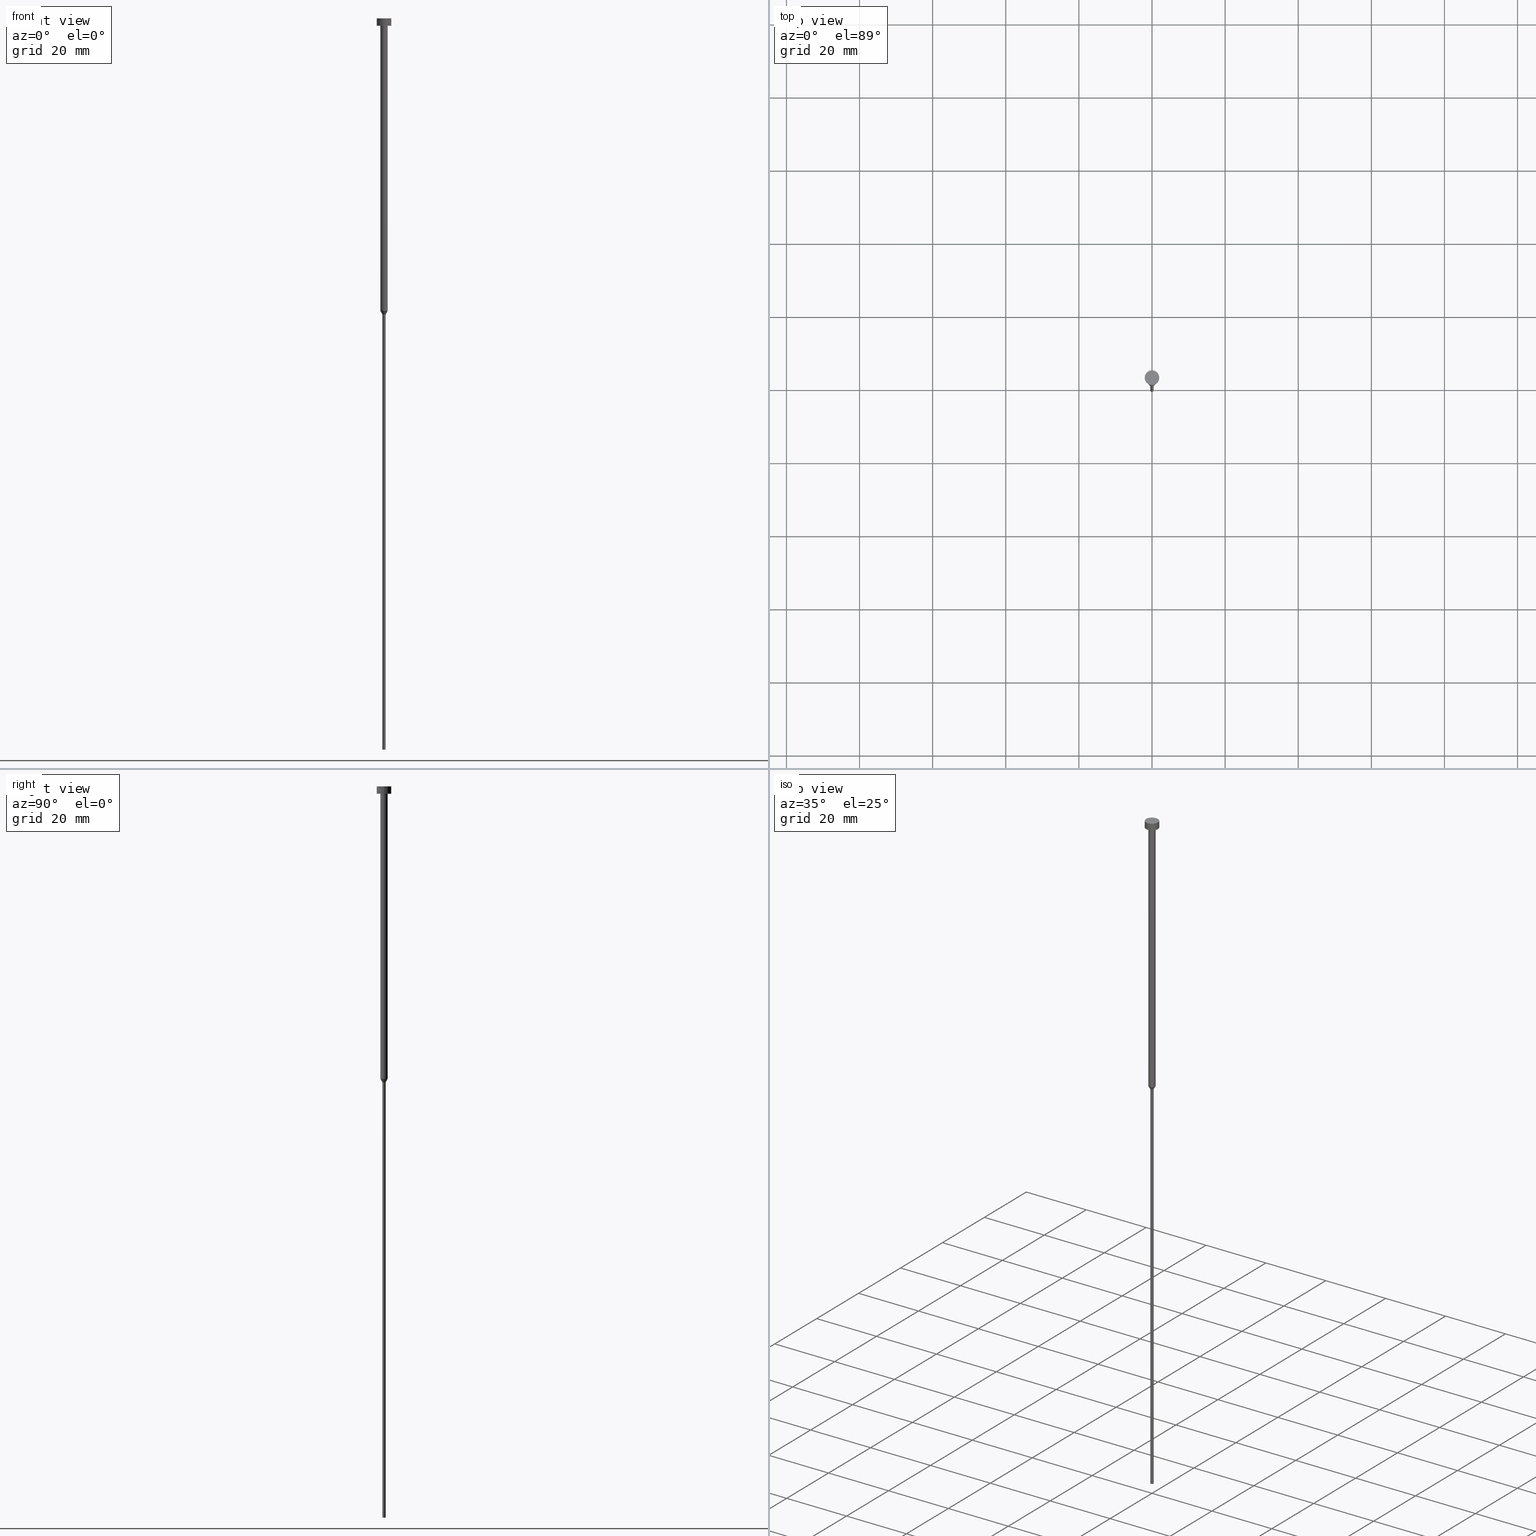
[diagram: canonical four-view strip — front | top / right | iso, engineering-drawing reading convention]
A machine part, canonical four-view strip (front | top / right | iso — engineering-drawing reading convention). The complete STEP part file that produces these views, byte-faithful:
ISO-10303-21;
HEADER;
FILE_DESCRIPTION (( 'STEP AP203' ),
    '1' );
FILE_NAME ('232b.STEP',
    '2023-02-13T11:50:11',
    ( '' ),
    ( '' ),
    'SwSTEP 2.0',
    'SolidWorks 2019',
    '' );
FILE_SCHEMA (( 'CONFIG_CONTROL_DESIGN' ));
ENDSEC;

DATA;
#1 = CIRCLE ( 'NONE', #137, 0.4500000000000000111 ) ;
#2 = DIRECTION ( 'NONE',  ( -0.000000000000000000, -0.000000000000000000, 1.000000000000000000 ) ) ;
#3 = EDGE_LOOP ( 'NONE', ( #285, #65, #34, #59 ) ) ;
#4 = CARTESIAN_POINT ( 'NONE',  ( 0.000000000000000000, 0.000000000000000000, 0.000000000000000000 ) ) ;
#5 = CARTESIAN_POINT ( 'NONE',  ( 2.000000000000000000, 0.000000000000000000, -2.449293598294705921E-16 ) ) ;
#6 = APPLICATION_CONTEXT ( 'configuration controlled 3d designs of mechanical parts and assemblies' ) ;
#7 = CARTESIAN_POINT ( 'NONE',  ( 0.000000000000000000, 0.000000000000000000, -80.95262794416288443 ) ) ;
#8 = FACE_OUTER_BOUND ( 'NONE', #238, .T. ) ;
#9 = AXIS2_PLACEMENT_3D ( 'NONE', #60, #187, #146 ) ;
#10 = CARTESIAN_POINT ( 'NONE',  ( -2.000000000000000000, 2.449293598294706414E-16, 0.000000000000000000 ) ) ;
#11 = EDGE_CURVE ( 'NONE', #88, #261, #38, .T. ) ;
#12 = CARTESIAN_POINT ( 'NONE',  ( 0.000000000000000000, 0.000000000000000000, -2.000000000000000444 ) ) ;
#13 = ORIENTED_EDGE ( 'NONE', *, *, #195, .T. ) ;
#14 = CIRCLE ( 'NONE', #188, 2.000000000000000000 ) ;
#15 = DIRECTION ( 'NONE',  ( -0.000000000000000000, -0.000000000000000000, 1.000000000000000000 ) ) ;
#16 = DIRECTION ( 'NONE',  ( 1.000000000000000000, 0.000000000000000000, 0.000000000000000000 ) ) ;
#17 =( NAMED_UNIT ( * ) PLANE_ANGLE_UNIT ( ) SI_UNIT ( $, .RADIAN. ) );
#18 = EDGE_CURVE ( 'NONE', #297, #194, #217, .T. ) ;
#19 = AXIS2_PLACEMENT_3D ( 'NONE', #167, #42, #145 ) ;
#20 = SECURITY_CLASSIFICATION_LEVEL ( 'unclassified' ) ;
#21 = VERTEX_POINT ( 'NONE', #276 ) ;
#22 = APPROVAL_STATUS ( 'not_yet_approved' ) ;
#23 = ORIENTED_EDGE ( 'NONE', *, *, #154, .F. ) ;
#24 = CARTESIAN_POINT ( 'NONE',  ( 0.000000000000000000, 0.000000000000000000, 0.000000000000000000 ) ) ;
#25 = DIRECTION ( 'NONE',  ( -1.000000000000000000, 0.000000000000000000, -0.000000000000000000 ) ) ;
#26 = APPLICATION_CONTEXT ( 'configuration controlled 3d designs of mechanical parts and assemblies' ) ;
#27 = EDGE_CURVE ( 'NONE', #194, #268, #35, .T. ) ;
#28 = ORIENTED_EDGE ( 'NONE', *, *, #280, .T. ) ;
#29 = CIRCLE ( 'NONE', #45, 0.4500000000000000111 ) ;
#30 = ORIENTED_EDGE ( 'NONE', *, *, #309, .F. ) ;
#31 = ORIENTED_EDGE ( 'NONE', *, *, #68, .T. ) ;
#32 = ORIENTED_EDGE ( 'NONE', *, *, #117, .F. ) ;
#33 = DESIGN_CONTEXT ( 'detailed design', #26, 'design' ) ;
#34 = ORIENTED_EDGE ( 'NONE', *, *, #280, .F. ) ;
#35 = CIRCLE ( 'NONE', #269, 2.000000000000000000 ) ;
#36 = DIRECTION ( 'NONE',  ( 1.000000000000000000, 0.000000000000000000, 0.000000000000000000 ) ) ;
#37 = DIRECTION ( 'NONE',  ( -0.000000000000000000, -0.000000000000000000, 1.000000000000000000 ) ) ;
#38 = LINE ( 'NONE', #115, #67 ) ;
#39 = CC_DESIGN_PERSON_AND_ORGANIZATION_ASSIGNMENT ( #47, #153, ( #50 ) ) ;
#40 = VECTOR ( 'NONE', #304, 1000.000000000000000 ) ;
#41 = CARTESIAN_POINT ( 'NONE',  ( 0.000000000000000000, -2.000000000000000000, -2.000000000000000444 ) ) ;
#42 = DIRECTION ( 'NONE',  ( -0.000000000000000000, -0.000000000000000000, 1.000000000000000000 ) ) ;
#43 = CARTESIAN_POINT ( 'NONE',  ( 0.000000000000000000, 0.000000000000000000, -2.000000000000000444 ) ) ;
#44 = EDGE_CURVE ( 'NONE', #61, #209, #252, .T. ) ;
#45 = AXIS2_PLACEMENT_3D ( 'NONE', #72, #200, #228 ) ;
#46 = DIRECTION ( 'NONE',  ( -0.000000000000000000, -0.000000000000000000, 1.000000000000000000 ) ) ;
#47 = PERSON_AND_ORGANIZATION ( #262, #109 ) ;
#48 = EDGE_LOOP ( 'NONE', ( #274, #13, #86, #307 ) ) ;
#49 = CARTESIAN_POINT ( 'NONE',  ( 1.000000000000003109, 0.000000000000000000, -80.00000000000000000 ) ) ;
#50 = SECURITY_CLASSIFICATION ( '', '', #20 ) ;
#51 = DIRECTION ( 'NONE',  ( 0.000000000000000000, 0.000000000000000000, -1.000000000000000000 ) ) ;
#52 = DATE_AND_TIME ( #279, #76 ) ;
#53 = EDGE_CURVE ( 'NONE', #268, #194, #322, .T. ) ;
#54 = VECTOR ( 'NONE', #78, 999.9999999999998863 ) ;
#55 = ORIENTED_EDGE ( 'NONE', *, *, #107, .F. ) ;
#56 = CIRCLE ( 'NONE', #251, 0.4500000000000000111 ) ;
#57 = EDGE_CURVE ( 'NONE', #131, #21, #29, .T. ) ;
#58 = CIRCLE ( 'NONE', #182, 1.000000000000003553 ) ;
#59 = ORIENTED_EDGE ( 'NONE', *, *, #11, .F. ) ;
#60 = CARTESIAN_POINT ( 'NONE',  ( 0.000000000000000000, 0.000000000000000000, 0.000000000000000000 ) ) ;
#61 = VERTEX_POINT ( 'NONE', #230 ) ;
#62 = FACE_OUTER_BOUND ( 'NONE', #140, .T. ) ;
#63 = APPROVAL ( #98, 'NEUR�EN�' ) ;
#64 = ORIENTED_EDGE ( 'NONE', *, *, #91, .F. ) ;
#65 = ORIENTED_EDGE ( 'NONE', *, *, #44, .T. ) ;
#66 = CARTESIAN_POINT ( 'NONE',  ( -0.4500000000000000111, 5.510910596163088939E-17, -200.0000000000000000 ) ) ;
#67 = VECTOR ( 'NONE', #2, 1000.000000000000000 ) ;
#68 = EDGE_CURVE ( 'NONE', #61, #88, #310, .T. ) ;
#69 = DIRECTION ( 'NONE',  ( 1.000000000000000000, 0.000000000000000000, 0.000000000000000000 ) ) ;
#70 = CARTESIAN_POINT ( 'NONE',  ( 0.000000000000000000, 0.000000000000000000, -2.449293598294705921E-16 ) ) ;
#71 = LINE ( 'NONE', #272, #214 ) ;
#72 = CARTESIAN_POINT ( 'NONE',  ( 0.000000000000000000, 0.000000000000000000, -200.0000000000000000 ) ) ;
#73 = CARTESIAN_POINT ( 'NONE',  ( 0.000000000000000000, 0.000000000000000000, 0.000000000000000000 ) ) ;
#74 = CARTESIAN_POINT ( 'NONE',  ( 0.000000000000000000, 0.000000000000000000, -80.00000000000000000 ) ) ;
#75 = CALENDAR_DATE ( 2023, 13, 2 ) ;
#76 = LOCAL_TIME ( 12, 50, 11.00000000000000000, #255 ) ;
#77 = DATE_AND_TIME ( #177, #267 ) ;
#78 = DIRECTION ( 'NONE',  ( 0.5000000000000014433, 0.000000000000000000, 0.8660254037844379305 ) ) ;
#79 = LINE ( 'NONE', #123, #342 ) ;
#80 =( NAMED_UNIT ( * ) SI_UNIT ( $, .STERADIAN. ) SOLID_ANGLE_UNIT ( ) );
#81 = APPROVAL_PERSON_ORGANIZATION ( #346, #63, #317 ) ;
#82 = VERTEX_POINT ( 'NONE', #316 ) ;
#83 = ORIENTED_EDGE ( 'NONE', *, *, #195, .F. ) ;
#84 = VECTOR ( 'NONE', #116, 1000.000000000000000 ) ;
#85 = EDGE_CURVE ( 'NONE', #287, #88, #290, .T. ) ;
#86 = ORIENTED_EDGE ( 'NONE', *, *, #27, .F. ) ;
#87 = CIRCLE ( 'NONE', #281, 1.000000000000003553 ) ;
#88 = VERTEX_POINT ( 'NONE', #49 ) ;
#89 = DIRECTION ( 'NONE',  ( 0.000000000000000000, -0.000000000000000000, 1.000000000000000000 ) ) ;
#90 = ORIENTED_EDGE ( 'NONE', *, *, #57, .T. ) ;
#91 = EDGE_CURVE ( 'NONE', #88, #61, #258, .T. ) ;
#92 = EDGE_LOOP ( 'NONE', ( #83, #216, #157, #332 ) ) ;
#93 = ORIENTED_EDGE ( 'NONE', *, *, #337, .F. ) ;
#94 = CARTESIAN_POINT ( 'NONE',  ( 0.000000000000000000, 0.000000000000000000, -80.00000000000000000 ) ) ;
#95 = FACE_OUTER_BOUND ( 'NONE', #92, .T. ) ;
#96 = CARTESIAN_POINT ( 'NONE',  ( 0.000000000000000000, 0.000000000000000000, 0.000000000000000000 ) ) ;
#97 = ADVANCED_FACE ( 'NONE', ( #176 ), #347, .T. ) ;
#98 = APPROVAL_STATUS ( 'not_yet_approved' ) ;
#99 = PERSON_AND_ORGANIZATION ( #262, #109 ) ;
#100 = ADVANCED_FACE ( 'NONE', ( #8 ), #246, .T. ) ;
#101 = PERSON_AND_ORGANIZATION_ROLE ( 'creator' ) ;
#102 = AXIS2_PLACEMENT_3D ( 'NONE', #311, #147, #295 ) ;
#103 = LOCAL_TIME ( 12, 50, 11.00000000000000000, #152 ) ;
#104 = ORIENTED_EDGE ( 'NONE', *, *, #68, .F. ) ;
#105 = APPROVAL_DATE_TIME ( #208, #254 ) ;
#106 = FACE_OUTER_BOUND ( 'NONE', #331, .T. ) ;
#107 = EDGE_CURVE ( 'NONE', #131, #112, #71, .T. ) ;
#108 = AXIS2_PLACEMENT_3D ( 'NONE', #94, #37, #193 ) ;
#109 = ORGANIZATION ( 'NEUR�EN�', 'NEUR�EN�', '' ) ;
#110 = APPROVAL_ROLE ( '' ) ;
#111 = EDGE_CURVE ( 'NONE', #21, #131, #213, .T. ) ;
#112 = VERTEX_POINT ( 'NONE', #308 ) ;
#113 = DIRECTION ( 'NONE',  ( 1.000000000000000000, 0.000000000000000000, 0.000000000000000000 ) ) ;
#114 = APPROVAL_PERSON_ORGANIZATION ( #155, #254, #110 ) ;
#115 = CARTESIAN_POINT ( 'NONE',  ( 1.000000000000003331, 0.000000000000000000, 0.000000000000000000 ) ) ;
#116 = DIRECTION ( 'NONE',  ( -0.000000000000000000, -0.000000000000000000, 1.000000000000000000 ) ) ;
#117 = EDGE_CURVE ( 'NONE', #82, #297, #247, .T. ) ;
#118 = DIRECTION ( 'NONE',  ( -0.000000000000000000, -0.000000000000000000, 1.000000000000000000 ) ) ;
#119 = VECTOR ( 'NONE', #198, 1000.000000000000000 ) ;
#120 = PERSON_AND_ORGANIZATION ( #262, #109 ) ;
#121 = CARTESIAN_POINT ( 'NONE',  ( -1.000000000000003331, 1.224646799147357151E-16, 0.000000000000000000 ) ) ;
#122 = DIRECTION ( 'NONE',  ( 1.000000000000000000, 0.000000000000000000, 0.000000000000000000 ) ) ;
#123 = CARTESIAN_POINT ( 'NONE',  ( -1.000000000000003109, 1.224646799147356905E-16, -80.00000000000000000 ) ) ;
#124 = ORIENTED_EDGE ( 'NONE', *, *, #132, .T. ) ;
#125 =( LENGTH_UNIT ( ) NAMED_UNIT ( * ) SI_UNIT ( .MILLI., .METRE. ) );
#126 = ADVANCED_FACE ( 'NONE', ( #128 ), #170, .T. ) ;
#127 = APPROVAL_ROLE ( '' ) ;
#128 = FACE_OUTER_BOUND ( 'NONE', #301, .T. ) ;
#129 = SHAPE_DEFINITION_REPRESENTATION ( #136, #248 ) ;
#130 = DIRECTION ( 'NONE',  ( -1.000000000000000000, 0.000000000000000000, -0.000000000000000000 ) ) ;
#131 = VERTEX_POINT ( 'NONE', #66 ) ;
#132 = EDGE_CURVE ( 'NONE', #21, #287, #219, .T. ) ;
#133 = ORIENTED_EDGE ( 'NONE', *, *, #53, .T. ) ;
#134 = PLANE ( 'NONE',  #168 ) ;
#135 = CALENDAR_DATE ( 2023, 13, 2 ) ;
#136 = PRODUCT_DEFINITION_SHAPE ( 'NONE', 'NONE',  #207 ) ;
#137 = AXIS2_PLACEMENT_3D ( 'NONE', #7, #218, #244 ) ;
#138 = CARTESIAN_POINT ( 'NONE',  ( -2.000000000000000000, 2.449293598294706414E-16, -2.449293598294705921E-16 ) ) ;
#139 = AXIS2_PLACEMENT_3D ( 'NONE', #73, #283, #113 ) ;
#140 = EDGE_LOOP ( 'NONE', ( #55, #90, #124, #185 ) ) ;
#141 = DIRECTION ( 'NONE',  ( -0.000000000000000000, -0.000000000000000000, 1.000000000000000000 ) ) ;
#142 = AXIS2_PLACEMENT_3D ( 'NONE', #264, #210, #36 ) ;
#143 = CARTESIAN_POINT ( 'NONE',  ( 0.000000000000000000, 0.000000000000000000, -200.0000000000000000 ) ) ;
#144 = CC_DESIGN_SECURITY_CLASSIFICATION ( #50, ( #305 ) ) ;
#145 = DIRECTION ( 'NONE',  ( 1.000000000000000000, 0.000000000000000000, 0.000000000000000000 ) ) ;
#146 = DIRECTION ( 'NONE',  ( 1.000000000000000000, 0.000000000000000000, 0.000000000000000000 ) ) ;
#147 = DIRECTION ( 'NONE',  ( -0.000000000000000000, -0.000000000000000000, 1.000000000000000000 ) ) ;
#148 = AXIS2_PLACEMENT_3D ( 'NONE', #143, #224, #69 ) ;
#149 = CARTESIAN_POINT ( 'NONE',  ( 0.000000000000000000, 0.000000000000000000, -80.00000000000000000 ) ) ;
#150 = CYLINDRICAL_SURFACE ( 'NONE', #139, 1.000000000000003331 ) ;
#151 = DIRECTION ( 'NONE',  ( 1.000000000000000000, 0.000000000000000000, 0.000000000000000000 ) ) ;
#152 = COORDINATED_UNIVERSAL_TIME_OFFSET ( 1, 0, .AHEAD. ) ;
#153 = PERSON_AND_ORGANIZATION_ROLE ( 'classification_officer' ) ;
#154 = EDGE_CURVE ( 'NONE', #297, #82, #14, .T. ) ;
#155 = PERSON_AND_ORGANIZATION ( #262, #109 ) ;
#156 = VECTOR ( 'NONE', #303, 1000.000000000000000 ) ;
#157 = ORIENTED_EDGE ( 'NONE', *, *, #18, .T. ) ;
#158 = CYLINDRICAL_SURFACE ( 'NONE', #296, 0.4500000000000000111 ) ;
#159 = CC_DESIGN_PERSON_AND_ORGANIZATION_ASSIGNMENT ( #291, #257, ( #305 ) ) ;
#160 = EDGE_CURVE ( 'NONE', #112, #287, #1, .T. ) ;
#161 = EDGE_LOOP ( 'NONE', ( #28, #175 ) ) ;
#162 = AXIS2_PLACEMENT_3D ( 'NONE', #74, #173, #122 ) ;
#163 = DIRECTION ( 'NONE',  ( -0.000000000000000000, -0.000000000000000000, 1.000000000000000000 ) ) ;
#164 = LINE ( 'NONE', #10, #84 ) ;
#165 = ORIENTED_EDGE ( 'NONE', *, *, #11, .T. ) ;
#166 = ADVANCED_FACE ( 'NONE', ( #62 ), #158, .T. ) ;
#167 = CARTESIAN_POINT ( 'NONE',  ( 0.000000000000000000, 0.000000000000000000, 0.000000000000000000 ) ) ;
#168 = AXIS2_PLACEMENT_3D ( 'NONE', #344, #51, #25 ) ;
#169 = FACE_OUTER_BOUND ( 'NONE', #329, .T. ) ;
#170 = CONICAL_SURFACE ( 'NONE', #108, 1.000000000000003109, 0.5235987755983005920 ) ;
#171 = ORIENTED_EDGE ( 'NONE', *, *, #27, .T. ) ;
#172 = APPROVAL_PERSON_ORGANIZATION ( #120, #312, #127 ) ;
#173 = DIRECTION ( 'NONE',  ( -0.000000000000000000, -0.000000000000000000, 1.000000000000000000 ) ) ;
#174 = PERSON_AND_ORGANIZATION_ROLE ( 'creator' ) ;
#175 = ORIENTED_EDGE ( 'NONE', *, *, #337, .T. ) ;
#176 = FACE_OUTER_BOUND ( 'NONE', #48, .T. ) ;
#177 = CALENDAR_DATE ( 2023, 13, 2 ) ;
#178 = ADVANCED_FACE ( 'NONE', ( #106 ), #278, .T. ) ;
#179 = COORDINATED_UNIVERSAL_TIME_OFFSET ( 1, 0, .AHEAD. ) ;
#180 = CC_DESIGN_DATE_AND_TIME_ASSIGNMENT ( #253, #201, ( #207 ) ) ;
#181 = APPROVAL_STATUS ( 'not_yet_approved' ) ;
#182 = AXIS2_PLACEMENT_3D ( 'NONE', #12, #118, #341 ) ;
#183 = FACE_OUTER_BOUND ( 'NONE', #3, .T. ) ;
#184 = CARTESIAN_POINT ( 'NONE',  ( 1.000000000000003553, 0.000000000000000000, -2.000000000000000444 ) ) ;
#185 = ORIENTED_EDGE ( 'NONE', *, *, #160, .F. ) ;
#186 = ORIENTED_EDGE ( 'NONE', *, *, #85, .T. ) ;
#187 = DIRECTION ( 'NONE',  ( -0.000000000000000000, -0.000000000000000000, 1.000000000000000000 ) ) ;
#188 = AXIS2_PLACEMENT_3D ( 'NONE', #271, #141, #245 ) ;
#189 = ORIENTED_EDGE ( 'NONE', *, *, #111, .T. ) ;
#190 = EDGE_LOOP ( 'NONE', ( #324, #299 ) ) ;
#191 = CC_DESIGN_APPROVAL ( #312, ( #207 ) ) ;
#192 = PRODUCT_RELATED_PRODUCT_CATEGORY ( 'detail', '', ( #298 ) ) ;
#193 = DIRECTION ( 'NONE',  ( 1.000000000000000000, 0.000000000000000000, 0.000000000000000000 ) ) ;
#194 = VERTEX_POINT ( 'NONE', #5 ) ;
#195 = EDGE_CURVE ( 'NONE', #82, #268, #164, .T. ) ;
#196 =( GEOMETRIC_REPRESENTATION_CONTEXT ( 3 ) GLOBAL_UNCERTAINTY_ASSIGNED_CONTEXT ( ( #302 ) ) GLOBAL_UNIT_ASSIGNED_CONTEXT ( ( #125, #17, #80 ) ) REPRESENTATION_CONTEXT ( 'NONE', 'WORKASPACE' ) );
#197 = CYLINDRICAL_SURFACE ( 'NONE', #19, 1.000000000000003331 ) ;
#198 = DIRECTION ( 'NONE',  ( -0.000000000000000000, -0.000000000000000000, 1.000000000000000000 ) ) ;
#199 = FACE_OUTER_BOUND ( 'NONE', #353, .T. ) ;
#200 = DIRECTION ( 'NONE',  ( -0.000000000000000000, -0.000000000000000000, 1.000000000000000000 ) ) ;
#201 = DATE_TIME_ROLE ( 'creation_date' ) ;
#202 = CALENDAR_DATE ( 2023, 13, 2 ) ;
#203 = ADVANCED_FACE ( 'NONE', ( #222, #339 ), #336, .T. ) ;
#204 = DIRECTION ( 'NONE',  ( -0.000000000000000000, -0.000000000000000000, 1.000000000000000000 ) ) ;
#205 = MECHANICAL_CONTEXT ( 'NONE', #6, 'mechanical' ) ;
#206 = APPROVAL_DATE_TIME ( #236, #63 ) ;
#207 = PRODUCT_DEFINITION ( 'NEZN�M�', '', #305, #33 ) ;
#208 = DATE_AND_TIME ( #135, #319 ) ;
#209 = VERTEX_POINT ( 'NONE', #239 ) ;
#210 = DIRECTION ( 'NONE',  ( -0.000000000000000000, -0.000000000000000000, 1.000000000000000000 ) ) ;
#211 = FACE_OUTER_BOUND ( 'NONE', #190, .T. ) ;
#212 = CARTESIAN_POINT ( 'NONE',  ( 0.000000000000000000, 0.000000000000000000, -80.95262794416288443 ) ) ;
#213 = CIRCLE ( 'NONE', #148, 0.4500000000000000111 ) ;
#214 = VECTOR ( 'NONE', #223, 1000.000000000000000 ) ;
#215 = ORIENTED_EDGE ( 'NONE', *, *, #160, .T. ) ;
#216 = ORIENTED_EDGE ( 'NONE', *, *, #117, .T. ) ;
#217 = LINE ( 'NONE', #293, #40 ) ;
#218 = DIRECTION ( 'NONE',  ( -0.000000000000000000, -0.000000000000000000, 1.000000000000000000 ) ) ;
#219 = LINE ( 'NONE', #334, #156 ) ;
#220 = CC_DESIGN_PERSON_AND_ORGANIZATION_ASSIGNMENT ( #321, #174, ( #305 ) ) ;
#221 = AXIS2_PLACEMENT_3D ( 'NONE', #340, #338, #273 ) ;
#222 = FACE_BOUND ( 'NONE', #161, .T. ) ;
#223 = DIRECTION ( 'NONE',  ( -0.000000000000000000, -0.000000000000000000, 1.000000000000000000 ) ) ;
#224 = DIRECTION ( 'NONE',  ( -0.000000000000000000, -0.000000000000000000, 1.000000000000000000 ) ) ;
#225 = ADVANCED_FACE ( 'NONE', ( #211 ), #134, .T. ) ;
#226 = CC_DESIGN_APPROVAL ( #254, ( #50 ) ) ;
#227 = DIRECTION ( 'NONE',  ( -0.000000000000000000, -0.000000000000000000, 1.000000000000000000 ) ) ;
#228 = DIRECTION ( 'NONE',  ( 1.000000000000000000, 0.000000000000000000, 0.000000000000000000 ) ) ;
#229 = DIRECTION ( 'NONE',  ( 1.000000000000000000, 0.000000000000000000, 0.000000000000000000 ) ) ;
#230 = CARTESIAN_POINT ( 'NONE',  ( -1.000000000000003109, 1.224646799147356905E-16, -80.00000000000000000 ) ) ;
#231 = APPROVAL_DATE_TIME ( #52, #312 ) ;
#232 = AXIS2_PLACEMENT_3D ( 'NONE', #70, #227, #313 ) ;
#233 = DIRECTION ( 'NONE',  ( 0.000000000000000000, 0.000000000000000000, 1.000000000000000000 ) ) ;
#234 = ORIENTED_EDGE ( 'NONE', *, *, #44, .F. ) ;
#235 = ORIENTED_EDGE ( 'NONE', *, *, #343, .F. ) ;
#236 = DATE_AND_TIME ( #75, #240 ) ;
#237 = AXIS2_PLACEMENT_3D ( 'NONE', #4, #163, #242 ) ;
#238 = EDGE_LOOP ( 'NONE', ( #189, #259, #30, #355 ) ) ;
#239 = CARTESIAN_POINT ( 'NONE',  ( -1.000000000000003553, 1.224646799147357398E-16, -2.000000000000000444 ) ) ;
#240 = LOCAL_TIME ( 12, 50, 11.00000000000000000, #179 ) ;
#241 = ADVANCED_FACE ( 'NONE', ( #199 ), #197, .T. ) ;
#242 = DIRECTION ( 'NONE',  ( 1.000000000000000000, 0.000000000000000000, 0.000000000000000000 ) ) ;
#243 = CC_DESIGN_PERSON_AND_ORGANIZATION_ASSIGNMENT ( #99, #101, ( #207 ) ) ;
#244 = DIRECTION ( 'NONE',  ( 1.000000000000000000, 0.000000000000000000, 0.000000000000000000 ) ) ;
#245 = DIRECTION ( 'NONE',  ( 1.000000000000000000, 0.000000000000000000, 0.000000000000000000 ) ) ;
#246 = CYLINDRICAL_SURFACE ( 'NONE', #9, 0.4500000000000000111 ) ;
#247 = CIRCLE ( 'NONE', #221, 2.000000000000000000 ) ;
#248 = ADVANCED_BREP_SHAPE_REPRESENTATION ( '232b', ( #263, #270 ), #196 ) ;
#249 = AXIS2_PLACEMENT_3D ( 'NONE', #149, #204, #16 ) ;
#250 = DIRECTION ( 'NONE',  ( 1.000000000000000000, 0.000000000000000000, 0.000000000000000000 ) ) ;
#251 = AXIS2_PLACEMENT_3D ( 'NONE', #212, #345, #277 ) ;
#252 = LINE ( 'NONE', #121, #119 ) ;
#253 = DATE_AND_TIME ( #202, #103 ) ;
#254 = APPROVAL ( #181, 'NEUR�EN�' ) ;
#255 = COORDINATED_UNIVERSAL_TIME_OFFSET ( 1, 0, .AHEAD. ) ;
#256 = ORIENTED_EDGE ( 'NONE', *, *, #343, .T. ) ;
#257 = PERSON_AND_ORGANIZATION_ROLE ( 'design_supplier' ) ;
#258 = CIRCLE ( 'NONE', #249, 1.000000000000003109 ) ;
#259 = ORIENTED_EDGE ( 'NONE', *, *, #107, .T. ) ;
#260 = ADVANCED_FACE ( 'NONE', ( #95 ), #315, .T. ) ;
#261 = VERTEX_POINT ( 'NONE', #184 ) ;
#262 = PERSON ( 'NEUR�EN�', 'NEUR�EN�', 'NEUR�EN�', ('NEUR�EN�'), ('NEUR�EN�'), ('NEUR�EN�') ) ;
#263 = MANIFOLD_SOLID_BREP ( 'Rotovat1', #289 ) ;
#264 = CARTESIAN_POINT ( 'NONE',  ( 0.000000000000000000, 0.000000000000000000, -80.00000000000000000 ) ) ;
#265 = DIRECTION ( 'NONE',  ( 0.000000000000000000, 0.000000000000000000, -1.000000000000000000 ) ) ;
#266 = ORIENTED_EDGE ( 'NONE', *, *, #309, .T. ) ;
#267 = LOCAL_TIME ( 12, 50, 11.00000000000000000, #320 ) ;
#268 = VERTEX_POINT ( 'NONE', #138 ) ;
#269 = AXIS2_PLACEMENT_3D ( 'NONE', #282, #46, #151 ) ;
#270 = AXIS2_PLACEMENT_3D ( 'NONE', #96, #233, #250 ) ;
#271 = CARTESIAN_POINT ( 'NONE',  ( 0.000000000000000000, 0.000000000000000000, -2.000000000000000444 ) ) ;
#272 = CARTESIAN_POINT ( 'NONE',  ( -0.4500000000000000111, 5.510910596163088939E-17, 0.000000000000000000 ) ) ;
#273 = DIRECTION ( 'NONE',  ( 1.000000000000000000, 0.000000000000000000, 0.000000000000000000 ) ) ;
#274 = ORIENTED_EDGE ( 'NONE', *, *, #154, .T. ) ;
#275 = CARTESIAN_POINT ( 'NONE',  ( 1.000000000000003109, 0.000000000000000000, -80.00000000000000000 ) ) ;
#276 = CARTESIAN_POINT ( 'NONE',  ( 0.4500000000000000111, 0.000000000000000000, -200.0000000000000000 ) ) ;
#277 = DIRECTION ( 'NONE',  ( 1.000000000000000000, 0.000000000000000000, 0.000000000000000000 ) ) ;
#278 = CONICAL_SURFACE ( 'NONE', #142, 1.000000000000003109, 0.5235987755983005920 ) ;
#279 = CALENDAR_DATE ( 2023, 13, 2 ) ;
#280 = EDGE_CURVE ( 'NONE', #261, #209, #58, .T. ) ;
#281 = AXIS2_PLACEMENT_3D ( 'NONE', #43, #15, #229 ) ;
#282 = CARTESIAN_POINT ( 'NONE',  ( 0.000000000000000000, 0.000000000000000000, -2.449293598294705921E-16 ) ) ;
#283 = DIRECTION ( 'NONE',  ( -0.000000000000000000, -0.000000000000000000, 1.000000000000000000 ) ) ;
#284 = DIRECTION ( 'NONE',  ( -0.5000000000000014433, 6.123233995736784525E-17, 0.8660254037844379305 ) ) ;
#285 = ORIENTED_EDGE ( 'NONE', *, *, #91, .T. ) ;
#286 = DATE_TIME_ROLE ( 'classification_date' ) ;
#287 = VERTEX_POINT ( 'NONE', #333 ) ;
#288 = APPLICATION_PROTOCOL_DEFINITION ( 'international standard', 'config_control_design', 1994, #26 ) ;
#289 = CLOSED_SHELL ( 'NONE', ( #97, #330, #178, #100, #225, #166, #126, #241, #203, #260, #294 ) ) ;
#290 = LINE ( 'NONE', #275, #54 ) ;
#291 = PERSON_AND_ORGANIZATION ( #262, #109 ) ;
#292 = DIRECTION ( 'NONE',  ( 1.000000000000000000, 0.000000000000000000, 0.000000000000000000 ) ) ;
#293 = CARTESIAN_POINT ( 'NONE',  ( 2.000000000000000000, 0.000000000000000000, 0.000000000000000000 ) ) ;
#294 = ADVANCED_FACE ( 'NONE', ( #169 ), #327, .T. ) ;
#295 = DIRECTION ( 'NONE',  ( 1.000000000000000000, 0.000000000000000000, 0.000000000000000000 ) ) ;
#296 = AXIS2_PLACEMENT_3D ( 'NONE', #24, #354, #292 ) ;
#297 = VERTEX_POINT ( 'NONE', #323 ) ;
#298 = PRODUCT ( '232b', '232b', '', ( #205 ) ) ;
#299 = ORIENTED_EDGE ( 'NONE', *, *, #57, .F. ) ;
#300 = DIRECTION ( 'NONE',  ( 1.000000000000000000, 0.000000000000000000, 0.000000000000000000 ) ) ;
#301 = EDGE_LOOP ( 'NONE', ( #235, #215, #186, #104 ) ) ;
#302 = UNCERTAINTY_MEASURE_WITH_UNIT (LENGTH_MEASURE( 1.000000000000000082E-05 ), #125, 'distance_accuracy_value', 'NONE');
#303 = DIRECTION ( 'NONE',  ( -0.000000000000000000, -0.000000000000000000, 1.000000000000000000 ) ) ;
#304 = DIRECTION ( 'NONE',  ( -0.000000000000000000, -0.000000000000000000, 1.000000000000000000 ) ) ;
#305 = PRODUCT_DEFINITION_FORMATION_WITH_SPECIFIED_SOURCE ( 'LIBOVOLN�', '', #298, .NOT_KNOWN. ) ;
#306 = CARTESIAN_POINT ( 'NONE',  ( 0.000000000000000000, 0.000000000000000000, -1.224646799147352961E-16 ) ) ;
#307 = ORIENTED_EDGE ( 'NONE', *, *, #18, .F. ) ;
#308 = CARTESIAN_POINT ( 'NONE',  ( -0.4500000000000000111, 5.510910596163088939E-17, -80.95262794416288443 ) ) ;
#309 = EDGE_CURVE ( 'NONE', #287, #112, #56, .T. ) ;
#310 = CIRCLE ( 'NONE', #162, 1.000000000000003109 ) ;
#311 = CARTESIAN_POINT ( 'NONE',  ( 0.000000000000000000, 0.000000000000000000, 0.000000000000000000 ) ) ;
#312 = APPROVAL ( #22, 'NEUR�EN�' ) ;
#313 = DIRECTION ( 'NONE',  ( 1.000000000000000000, 0.000000000000000000, 0.000000000000000000 ) ) ;
#314 = APPLICATION_PROTOCOL_DEFINITION ( 'international standard', 'config_control_design', 1994, #6 ) ;
#315 = CYLINDRICAL_SURFACE ( 'NONE', #102, 2.000000000000000000 ) ;
#316 = CARTESIAN_POINT ( 'NONE',  ( -2.000000000000000000, 2.449293598294706414E-16, -2.000000000000000444 ) ) ;
#317 = APPROVAL_ROLE ( '' ) ;
#318 = EDGE_LOOP ( 'NONE', ( #23, #32 ) ) ;
#319 = LOCAL_TIME ( 12, 50, 11.00000000000000000, #351 ) ;
#320 = COORDINATED_UNIVERSAL_TIME_OFFSET ( 1, 0, .AHEAD. ) ;
#321 = PERSON_AND_ORGANIZATION ( #262, #109 ) ;
#322 = CIRCLE ( 'NONE', #232, 2.000000000000000000 ) ;
#323 = CARTESIAN_POINT ( 'NONE',  ( 2.000000000000000000, 0.000000000000000000, -2.000000000000000444 ) ) ;
#324 = ORIENTED_EDGE ( 'NONE', *, *, #111, .F. ) ;
#325 = CC_DESIGN_DATE_AND_TIME_ASSIGNMENT ( #77, #286, ( #50 ) ) ;
#326 = ORIENTED_EDGE ( 'NONE', *, *, #85, .F. ) ;
#327 = PLANE ( 'NONE',  #348 ) ;
#328 = AXIS2_PLACEMENT_3D ( 'NONE', #41, #265, #130 ) ;
#329 = EDGE_LOOP ( 'NONE', ( #171, #133 ) ) ;
#330 = ADVANCED_FACE ( 'NONE', ( #183 ), #150, .T. ) ;
#331 = EDGE_LOOP ( 'NONE', ( #266, #256, #64, #326 ) ) ;
#332 = ORIENTED_EDGE ( 'NONE', *, *, #53, .F. ) ;
#333 = CARTESIAN_POINT ( 'NONE',  ( 0.4500000000000000111, 0.000000000000000000, -80.95262794416288443 ) ) ;
#334 = CARTESIAN_POINT ( 'NONE',  ( 0.4500000000000000111, 0.000000000000000000, 0.000000000000000000 ) ) ;
#335 = CC_DESIGN_APPROVAL ( #63, ( #305 ) ) ;
#336 = PLANE ( 'NONE',  #328 ) ;
#337 = EDGE_CURVE ( 'NONE', #209, #261, #87, .T. ) ;
#338 = DIRECTION ( 'NONE',  ( -0.000000000000000000, -0.000000000000000000, 1.000000000000000000 ) ) ;
#339 = FACE_OUTER_BOUND ( 'NONE', #318, .T. ) ;
#340 = CARTESIAN_POINT ( 'NONE',  ( 0.000000000000000000, 0.000000000000000000, -2.000000000000000444 ) ) ;
#341 = DIRECTION ( 'NONE',  ( 1.000000000000000000, 0.000000000000000000, 0.000000000000000000 ) ) ;
#342 = VECTOR ( 'NONE', #284, 999.9999999999998863 ) ;
#343 = EDGE_CURVE ( 'NONE', #112, #61, #79, .T. ) ;
#344 = CARTESIAN_POINT ( 'NONE',  ( 0.000000000000000000, 0.000000000000000000, -200.0000000000000000 ) ) ;
#345 = DIRECTION ( 'NONE',  ( -0.000000000000000000, -0.000000000000000000, 1.000000000000000000 ) ) ;
#346 = PERSON_AND_ORGANIZATION ( #262, #109 ) ;
#347 = CYLINDRICAL_SURFACE ( 'NONE', #237, 2.000000000000000000 ) ;
#348 = AXIS2_PLACEMENT_3D ( 'NONE', #306, #89, #300 ) ;
#349 = PERSON_AND_ORGANIZATION_ROLE ( 'design_owner' ) ;
#350 = PERSON_AND_ORGANIZATION ( #262, #109 ) ;
#351 = COORDINATED_UNIVERSAL_TIME_OFFSET ( 1, 0, .AHEAD. ) ;
#352 = CC_DESIGN_PERSON_AND_ORGANIZATION_ASSIGNMENT ( #350, #349, ( #298 ) ) ;
#353 = EDGE_LOOP ( 'NONE', ( #234, #31, #165, #93 ) ) ;
#354 = DIRECTION ( 'NONE',  ( -0.000000000000000000, -0.000000000000000000, 1.000000000000000000 ) ) ;
#355 = ORIENTED_EDGE ( 'NONE', *, *, #132, .F. ) ;
ENDSEC;
END-ISO-10303-21;
